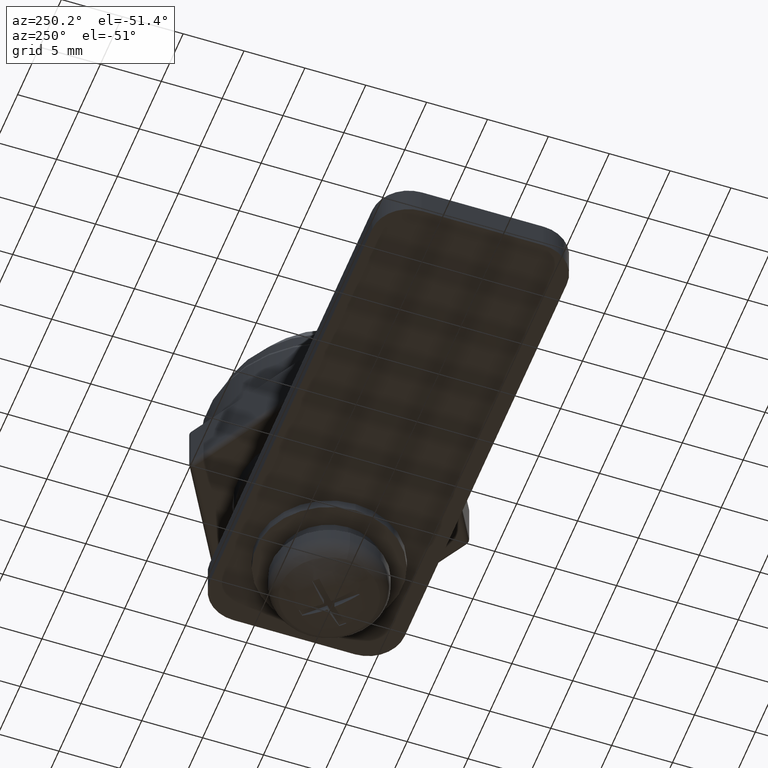
[diagram: clean part render]
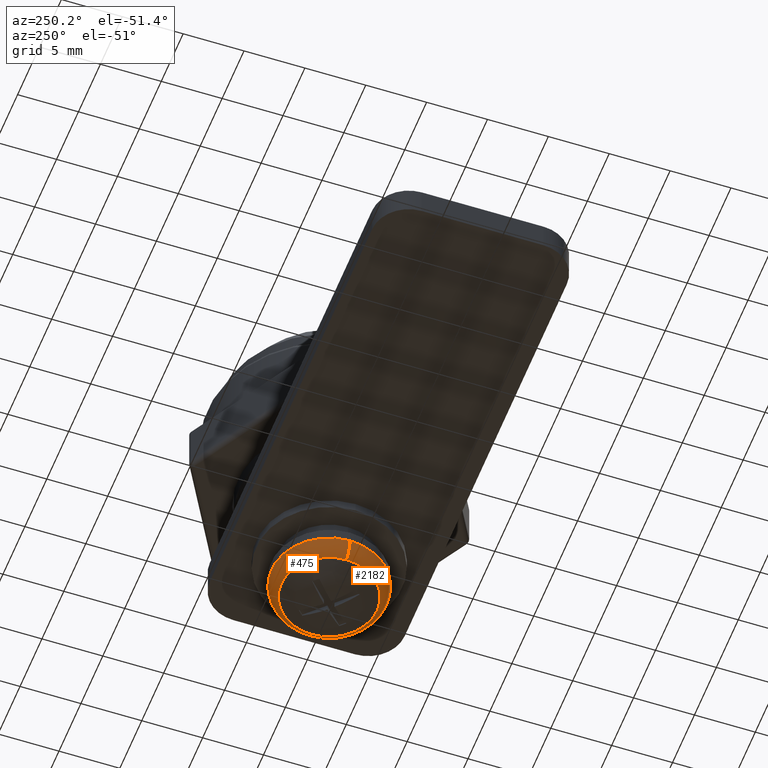
[diagram: same view with one multi-face feature highlighted, each face labeled with its STEP entity id]
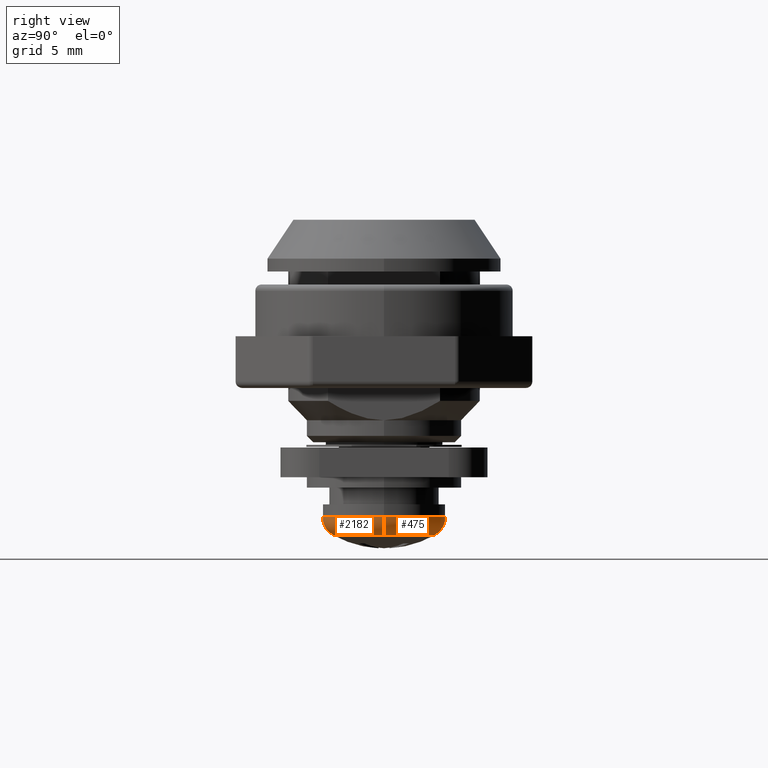
[diagram: same view with one multi-face feature highlighted, each face labeled with its STEP entity id]
A machine part, auxiliary view. The highlighted faces form ONE feature: a constant-radius fillet chain: 2 tangent blend faces with common blend radius 1.6 mm. The faces share edges in the B-rep.
A second angle (right view) of the same feature is appended — it is thin or edge-on in the first view.
Their STEP definitions:
[1] entity #475 (Torus):
#124 = FACE_OUTER_BOUND ( 'NONE', #4412, .T. ) ;
#241 = CARTESIAN_POINT ( 'NONE',  ( 0.0000000000000000000, 0.0000000000000000000, -0.9711309444312006300 ) ) ;
#255 = AXIS2_PLACEMENT_3D ( 'NONE', #5377, #2995, #2680 ) ;
#454 = AXIS2_PLACEMENT_3D ( 'NONE', #3042, #3007, #2691 ) ;
#475 = ADVANCED_FACE ( 'NONE', ( #124 ), #2425, .T. ) ;
#673 = DIRECTION ( 'NONE',  ( 1.000000000000000000, 0.0000000000000000000, 0.0000000000000000000 ) ) ;
#818 = CARTESIAN_POINT ( 'NONE',  ( 4.749999999999948500, 0.0000000000000000000, -0.9711309444312006300 ) ) ;
#835 = CARTESIAN_POINT ( 'NONE',  ( 0.0000000000000000000, 0.0000000000000000000, -2.363913680539022200 ) ) ;
#962 = ORIENTED_EDGE ( 'NONE', *, *, #3057, .F. ) ;
#1041 = ORIENTED_EDGE ( 'NONE', *, *, #3537, .T. ) ;
#1265 = DIRECTION ( 'NONE',  ( 1.000000000000000000, 0.0000000000000000000, 0.0000000000000000000 ) ) ;
#1278 = CARTESIAN_POINT ( 'NONE',  ( -3.937499999999951600, 5.319559533796253800E-016, -2.363913680539022200 ) ) ;
#1584 = VERTEX_POINT ( 'NONE', #818 ) ;
#1593 = DIRECTION ( 'NONE',  ( 0.0000000000000000000, -1.000000000000000000, 0.0000000000000000000 ) ) ;
#1852 = CARTESIAN_POINT ( 'NONE',  ( -4.749999999999948500, 5.817072295949864300E-016, -0.9711309444312006300 ) ) ;
#2190 = EDGE_CURVE ( 'NONE', #3928, #2377, #2861, .T. ) ;
#2212 = DIRECTION ( 'NONE',  ( 1.224646799147353200E-016, 1.000000000000000000, 0.0000000000000000000 ) ) ;
#2255 = ORIENTED_EDGE ( 'NONE', *, *, #2867, .T. ) ;
#2285 = CIRCLE ( 'NONE', #3713, 1.599999999999998100 ) ;
#2296 = AXIS2_PLACEMENT_3D ( 'NONE', #835, #3866, #1265 ) ;
#2377 = VERTEX_POINT ( 'NONE', #1278 ) ;
#2425 = TOROIDAL_SURFACE ( 'NONE', #255, 3.149999999999950600, 1.599999999999998100 ) ;
#2580 = VERTEX_POINT ( 'NONE', #1852 ) ;
#2680 = DIRECTION ( 'NONE',  ( 1.000000000000000000, 0.0000000000000000000, 0.0000000000000000000 ) ) ;
#2690 = AXIS2_PLACEMENT_3D ( 'NONE', #241, #3284, #673 ) ;
#2691 = DIRECTION ( 'NONE',  ( 1.000000000000000000, 0.0000000000000000000, 0.0000000000000000000 ) ) ;
#2861 = CIRCLE ( 'NONE', #454, 3.937499999999951600 ) ;
#2867 = EDGE_CURVE ( 'NONE', #2377, #2580, #2285, .T. ) ;
#2995 = DIRECTION ( 'NONE',  ( -0.0000000000000000000, -0.0000000000000000000, 1.000000000000000000 ) ) ;
#3007 = DIRECTION ( 'NONE',  ( -0.0000000000000000000, -0.0000000000000000000, 1.000000000000000000 ) ) ;
#3035 = AXIS2_PLACEMENT_3D ( 'NONE', #4187, #1593, #4628 ) ;
#3042 = CARTESIAN_POINT ( 'NONE',  ( 0.0000000000000000000, 0.0000000000000000000, -2.363913680539022200 ) ) ;
#3057 = EDGE_CURVE ( 'NONE', #3310, #1584, #3755, .T. ) ;
#3241 = CARTESIAN_POINT ( 'NONE',  ( 0.0000000000000000000, 3.937499999999952500, -2.363913680539021700 ) ) ;
#3284 = DIRECTION ( 'NONE',  ( -0.0000000000000000000, -0.0000000000000000000, 1.000000000000000000 ) ) ;
#3310 = VERTEX_POINT ( 'NONE', #4958 ) ;
#3356 = EDGE_CURVE ( 'NONE', #1584, #2580, #3569, .T. ) ;
#3537 = EDGE_CURVE ( 'NONE', #3310, #3928, #5044, .T. ) ;
#3569 = CIRCLE ( 'NONE', #2690, 4.749999999999948500 ) ;
#3713 = AXIS2_PLACEMENT_3D ( 'NONE', #4801, #2212, #5249 ) ;
#3755 = CIRCLE ( 'NONE', #3035, 1.599999999999998100 ) ;
#3866 = DIRECTION ( 'NONE',  ( -0.0000000000000000000, -0.0000000000000000000, 1.000000000000000000 ) ) ;
#3928 = VERTEX_POINT ( 'NONE', #3241 ) ;
#4187 = CARTESIAN_POINT ( 'NONE',  ( 3.149999999999950600, 0.0000000000000000000, -0.9711309444312008500 ) ) ;
#4412 = EDGE_LOOP ( 'NONE', ( #5357, #2255, #4916, #962, #1041 ) ) ;
#4628 = DIRECTION ( 'NONE',  ( 0.0000000000000000000, 0.0000000000000000000, -1.000000000000000000 ) ) ;
#4801 = CARTESIAN_POINT ( 'NONE',  ( -3.149999999999950600, 3.857637417314102000E-016, -0.9711309444312008500 ) ) ;
#4916 = ORIENTED_EDGE ( 'NONE', *, *, #3356, .F. ) ;
#4958 = CARTESIAN_POINT ( 'NONE',  ( 3.937499999999951600, 0.0000000000000000000, -2.363913680539022200 ) ) ;
#5044 = CIRCLE ( 'NONE', #2296, 3.937499999999951600 ) ;
#5249 = DIRECTION ( 'NONE',  ( -1.000000000000000000, 1.224646799147353200E-016, 0.0000000000000000000 ) ) ;
#5357 = ORIENTED_EDGE ( 'NONE', *, *, #2190, .T. ) ;
#5377 = CARTESIAN_POINT ( 'NONE',  ( 0.0000000000000000000, 0.0000000000000000000, -0.9711309444312008500 ) ) ;
[2] entity #2182 (Torus):
#160 = AXIS2_PLACEMENT_3D ( 'NONE', #3543, #4646, #1713 ) ;
#248 = EDGE_LOOP ( 'NONE', ( #906, #5076, #336, #1503, #4472 ) ) ;
#336 = ORIENTED_EDGE ( 'NONE', *, *, #4070, .T. ) ;
#727 = AXIS2_PLACEMENT_3D ( 'NONE', #1970, #1995, #1937 ) ;
#764 = EDGE_CURVE ( 'NONE', #2377, #5086, #4630, .T. ) ;
#818 = CARTESIAN_POINT ( 'NONE',  ( 4.749999999999948500, 0.0000000000000000000, -0.9711309444312006300 ) ) ;
#906 = ORIENTED_EDGE ( 'NONE', *, *, #2867, .F. ) ;
#1260 = CIRCLE ( 'NONE', #5012, 4.749999999999948500 ) ;
#1278 = CARTESIAN_POINT ( 'NONE',  ( -3.937499999999951600, 5.319559533796253800E-016, -2.363913680539022200 ) ) ;
#1503 = ORIENTED_EDGE ( 'NONE', *, *, #3057, .T. ) ;
#1584 = VERTEX_POINT ( 'NONE', #818 ) ;
#1593 = DIRECTION ( 'NONE',  ( 0.0000000000000000000, -1.000000000000000000, 0.0000000000000000000 ) ) ;
#1713 = DIRECTION ( 'NONE',  ( 1.000000000000000000, 0.0000000000000000000, 0.0000000000000000000 ) ) ;
#1804 = CARTESIAN_POINT ( 'NONE',  ( -4.822046771642644200E-016, -3.937500000000012900, -2.363913680539021700 ) ) ;
#1852 = CARTESIAN_POINT ( 'NONE',  ( -4.749999999999948500, 5.817072295949864300E-016, -0.9711309444312006300 ) ) ;
#1937 = DIRECTION ( 'NONE',  ( 1.000000000000000000, 0.0000000000000000000, 0.0000000000000000000 ) ) ;
#1970 = CARTESIAN_POINT ( 'NONE',  ( 0.0000000000000000000, 0.0000000000000000000, -2.363913680539022200 ) ) ;
#1995 = DIRECTION ( 'NONE',  ( -0.0000000000000000000, -0.0000000000000000000, 1.000000000000000000 ) ) ;
#2074 = CARTESIAN_POINT ( 'NONE',  ( 0.0000000000000000000, 0.0000000000000000000, -2.363913680539022200 ) ) ;
#2182 = ADVANCED_FACE ( 'NONE', ( #4023 ), #3142, .T. ) ;
#2212 = DIRECTION ( 'NONE',  ( 1.224646799147353200E-016, 1.000000000000000000, 0.0000000000000000000 ) ) ;
#2285 = CIRCLE ( 'NONE', #3713, 1.599999999999998100 ) ;
#2287 = CARTESIAN_POINT ( 'NONE',  ( 0.0000000000000000000, 0.0000000000000000000, -0.9711309444312006300 ) ) ;
#2377 = VERTEX_POINT ( 'NONE', #1278 ) ;
#2499 = DIRECTION ( 'NONE',  ( 1.000000000000000000, 0.0000000000000000000, 0.0000000000000000000 ) ) ;
#2580 = VERTEX_POINT ( 'NONE', #1852 ) ;
#2713 = DIRECTION ( 'NONE',  ( 1.000000000000000000, 0.0000000000000000000, 0.0000000000000000000 ) ) ;
#2867 = EDGE_CURVE ( 'NONE', #2377, #2580, #2285, .T. ) ;
#3035 = AXIS2_PLACEMENT_3D ( 'NONE', #4187, #1593, #4628 ) ;
#3057 = EDGE_CURVE ( 'NONE', #3310, #1584, #3755, .T. ) ;
#3142 = TOROIDAL_SURFACE ( 'NONE', #160, 3.149999999999950600, 1.599999999999998100 ) ;
#3239 = CIRCLE ( 'NONE', #5280, 3.937499999999951600 ) ;
#3310 = VERTEX_POINT ( 'NONE', #4958 ) ;
#3543 = CARTESIAN_POINT ( 'NONE',  ( 0.0000000000000000000, 0.0000000000000000000, -0.9711309444312008500 ) ) ;
#3713 = AXIS2_PLACEMENT_3D ( 'NONE', #4801, #2212, #5249 ) ;
#3755 = CIRCLE ( 'NONE', #3035, 1.599999999999998100 ) ;
#4023 = FACE_OUTER_BOUND ( 'NONE', #248, .T. ) ;
#4070 = EDGE_CURVE ( 'NONE', #5086, #3310, #3239, .T. ) ;
#4187 = CARTESIAN_POINT ( 'NONE',  ( 3.149999999999950600, 0.0000000000000000000, -0.9711309444312008500 ) ) ;
#4472 = ORIENTED_EDGE ( 'NONE', *, *, #5134, .F. ) ;
#4628 = DIRECTION ( 'NONE',  ( 0.0000000000000000000, 0.0000000000000000000, -1.000000000000000000 ) ) ;
#4630 = CIRCLE ( 'NONE', #727, 3.937499999999951600 ) ;
#4646 = DIRECTION ( 'NONE',  ( -0.0000000000000000000, -0.0000000000000000000, 1.000000000000000000 ) ) ;
#4801 = CARTESIAN_POINT ( 'NONE',  ( -3.149999999999950600, 3.857637417314102000E-016, -0.9711309444312008500 ) ) ;
#4958 = CARTESIAN_POINT ( 'NONE',  ( 3.937499999999951600, 0.0000000000000000000, -2.363913680539022200 ) ) ;
#5012 = AXIS2_PLACEMENT_3D ( 'NONE', #2287, #5319, #2713 ) ;
#5076 = ORIENTED_EDGE ( 'NONE', *, *, #764, .T. ) ;
#5086 = VERTEX_POINT ( 'NONE', #1804 ) ;
#5102 = DIRECTION ( 'NONE',  ( -0.0000000000000000000, -0.0000000000000000000, 1.000000000000000000 ) ) ;
#5134 = EDGE_CURVE ( 'NONE', #2580, #1584, #1260, .T. ) ;
#5249 = DIRECTION ( 'NONE',  ( -1.000000000000000000, 1.224646799147353200E-016, 0.0000000000000000000 ) ) ;
#5280 = AXIS2_PLACEMENT_3D ( 'NONE', #2074, #5102, #2499 ) ;
#5319 = DIRECTION ( 'NONE',  ( -0.0000000000000000000, -0.0000000000000000000, 1.000000000000000000 ) ) ;